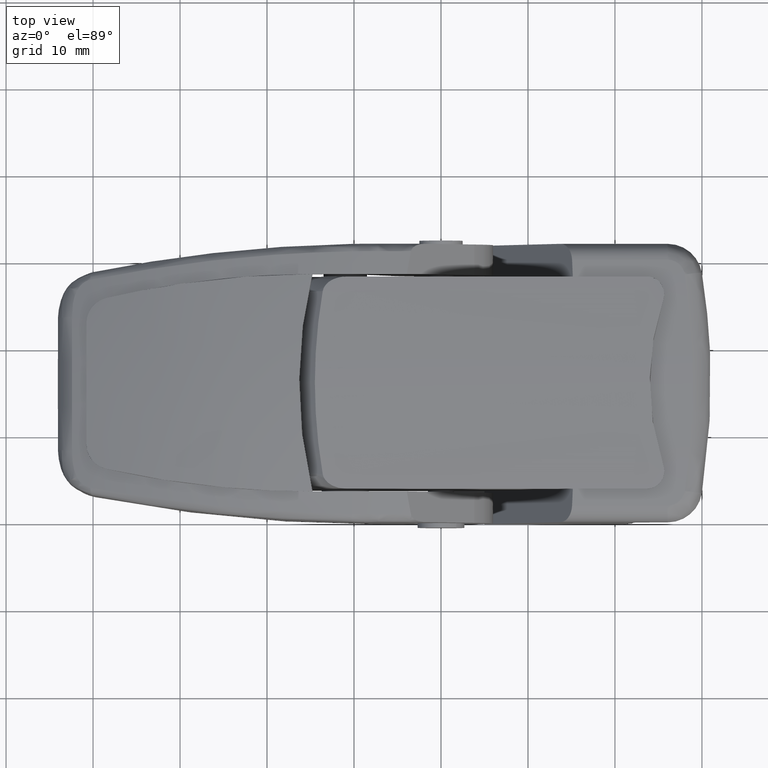
[diagram: clean part render]
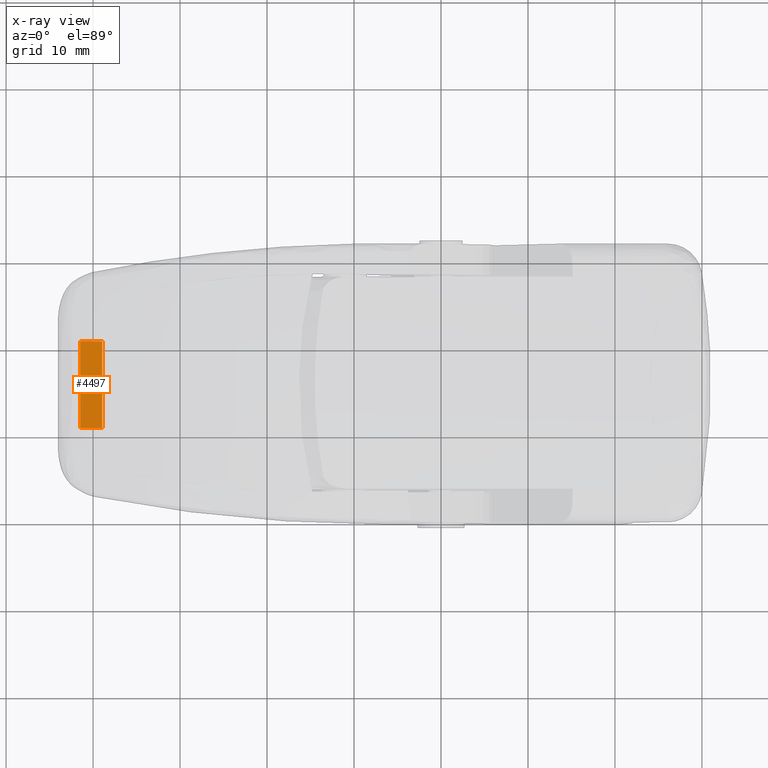
[diagram: x-ray — body ghosted, one internal face saturated and labeled with its STEP entity id]
A machine part, top view, then the same camera in x-ray: the body is ghosted and one INTERNAL B-rep face — a face not visible from any outside direction — is saturated and labeled: STEP entity #4497.
In plain terms, the highlighted planar face has unit normal (-0.6054, -0, -0.7959).
Its self-contained STEP definition (entity closure, byte-faithful):
#328=PLANE('',#4846);
#509=FACE_OUTER_BOUND('',#815,.T.);
#815=EDGE_LOOP('',(#3489,#3490,#3491,#3492));
#1101=LINE('',#7603,#1453);
#1127=LINE('',#8190,#1479);
#1129=LINE('',#8196,#1481);
#1130=LINE('',#8197,#1482);
#1453=VECTOR('',#5489,10.);
#1479=VECTOR('',#5607,3.20156211871642);
#1481=VECTOR('',#5615,3.20156211871642);
#1482=VECTOR('',#5616,10.);
#2053=VERTEX_POINT('',#7598);
#2054=VERTEX_POINT('',#7602);
#2103=VERTEX_POINT('',#8189);
#2104=VERTEX_POINT('',#8195);
#2533=EDGE_CURVE('',#2053,#2054,#1101,.T.);
#2610=EDGE_CURVE('',#2054,#2103,#1127,.T.);
#2613=EDGE_CURVE('',#2053,#2104,#1129,.T.);
#2614=EDGE_CURVE('',#2104,#2103,#1130,.T.);
#3489=ORIENTED_EDGE('',*,*,#2610,.F.);
#3490=ORIENTED_EDGE('',*,*,#2533,.F.);
#3491=ORIENTED_EDGE('',*,*,#2613,.T.);
#3492=ORIENTED_EDGE('',*,*,#2614,.T.);
#4497=ADVANCED_FACE('',(#509),#328,.F.);
#4846=AXIS2_PLACEMENT_3D('',#8194,#5613,#5614);
#5489=DIRECTION('',(-5.11740263676487E-17,1.05600027217998E-15,1.));
#5607=DIRECTION('',(-0.78086880944303,0.624695047554424,1.66533453693773E-16));
#5613=DIRECTION('center_axis',(-0.624695047554424,-0.78086880944303,7.92629514473404E-16));
#5614=DIRECTION('ref_axis',(0.,0.,1.));
#5615=DIRECTION('',(-0.78086880944303,0.624695047554424,1.66533453693773E-16));
#5616=DIRECTION('',(1.26882631385732E-15,1.28061835263151E-31,1.));
#7598=CARTESIAN_POINT('',(-39.,-2.,-4.99999999999996));
#7602=CARTESIAN_POINT('',(-39.,-2.,5.00000000000004));
#7603=CARTESIAN_POINT('',(-39.,-2.00000000000001,-2.49999975278675));
#8189=CARTESIAN_POINT('',(-41.5,-3.32504966432977E-15,5.00000000000004));
#8190=CARTESIAN_POINT('',(-39.,-2.,5.00000000000004));
#8194=CARTESIAN_POINT('Origin',(-39.,-2.,-4.99999999999996));
#8195=CARTESIAN_POINT('',(-41.5,-3.32504966432978E-15,-4.99999999999996));
#8196=CARTESIAN_POINT('',(-39.,-2.,-4.99999999999996));
#8197=CARTESIAN_POINT('',(-41.5,-3.32504966432978E-15,-4.99999999999996));